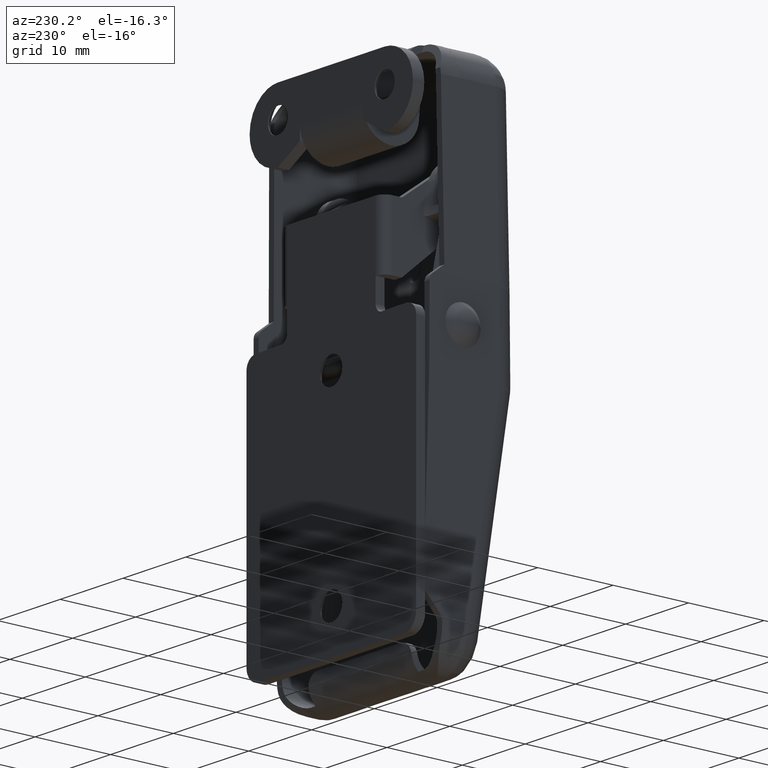
[diagram: clean part render]
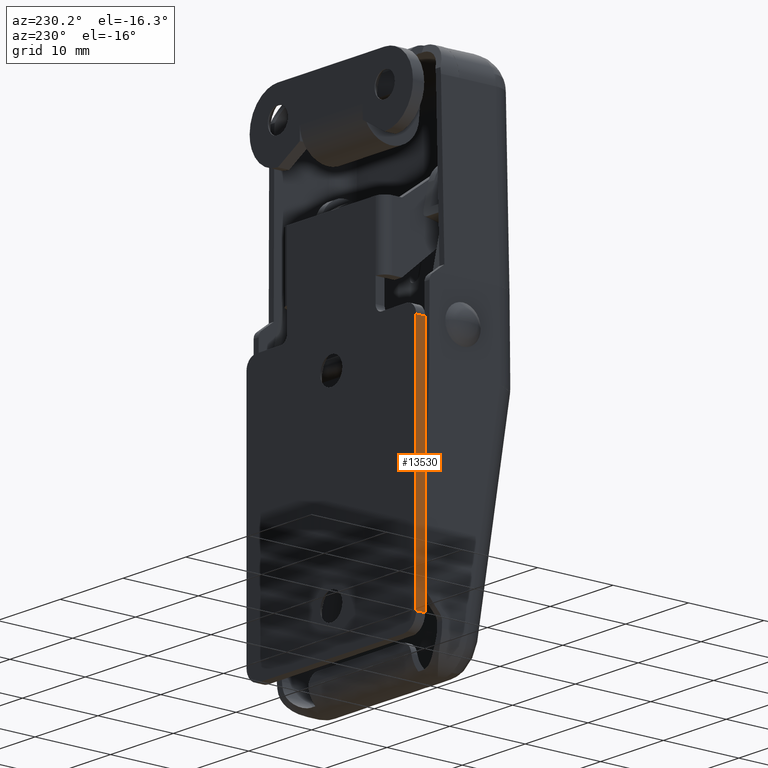
[diagram: same view with one face highlighted and labeled with its STEP entity id]
A machine part, auxiliary view. The second image highlights one B-rep face of the part: STEP entity #13530.
In plain terms, the highlighted face is a freeform B-spline surface patch.
Its self-contained STEP definition (entity closure, byte-faithful):
#13100=CARTESIAN_POINT('',(-13.499999999934261,5.714366013954140,-26.321209131115150));
#13101=VERTEX_POINT('',#13100);
#13115=CARTESIAN_POINT('',(-13.500000000010820,5.714366013954140,5.178790868792590));
#13116=VERTEX_POINT('',#13115);
#13117=CARTESIAN_POINT('',(-13.499999999934261,5.714366013954140,-26.321209131115150));
#13118=CARTESIAN_POINT('',(-13.500000000010820,5.714366013954140,5.178790868792590));
#13119=QUASI_UNIFORM_CURVE('',1,(#13117,#13118),.UNSPECIFIED.,.F.,.U.);
#13120=EDGE_CURVE('',#13101,#13116,#13119,.T.);
#13213=CARTESIAN_POINT('',(-13.500000000010820,4.514366013954160,5.178790868792590));
#13214=VERTEX_POINT('',#13213);
#13227=CARTESIAN_POINT('',(-13.499999999934261,4.514366013954160,-26.321209131115150));
#13228=VERTEX_POINT('',#13227);
#13229=CARTESIAN_POINT('',(-13.499999999934261,4.514366013954160,-26.321209131115150));
#13230=CARTESIAN_POINT('',(-13.500000000010820,4.514366013954160,5.178790868792590));
#13231=QUASI_UNIFORM_CURVE('',1,(#13229,#13230),.UNSPECIFIED.,.F.,.U.);
#13232=EDGE_CURVE('',#13228,#13214,#13231,.T.);
#13505=CARTESIAN_POINT('',(-13.500000000010820,4.514366013954160,5.178790868792590));
#13506=CARTESIAN_POINT('',(-13.500000000010820,5.714366013954140,5.178790868792590));
#13507=QUASI_UNIFORM_CURVE('',1,(#13505,#13506),.UNSPECIFIED.,.F.,.U.);
#13508=EDGE_CURVE('',#13214,#13116,#13507,.T.);
#13515=CARTESIAN_POINT('',(-13.499999999930440,4.454426016279993,-27.894634070057428));
#13516=CARTESIAN_POINT('',(-13.500000000014650,4.454426016279993,6.752216652630709));
#13517=CARTESIAN_POINT('',(-13.499999999930440,5.774306043814815,-27.894634070057428));
#13518=CARTESIAN_POINT('',(-13.500000000014650,5.774306043814815,6.752216652630709));
#13519=B_SPLINE_SURFACE_WITH_KNOTS('',1,1,((#13515,#13517),(#13516,#13518)),.UNSPECIFIED.,.F.,.F.,.U.,(2,2),(2,2),(0.0,34.646850722688143),(0.041708334948495,0.958291687403247),.UNSPECIFIED.);
#13520=ORIENTED_EDGE('',*,*,#13120,.F.);
#13521=CARTESIAN_POINT('',(-13.499999999934261,4.514366013954160,-26.321209131115150));
#13522=CARTESIAN_POINT('',(-13.499999999934261,5.714366013954140,-26.321209131115150));
#13523=QUASI_UNIFORM_CURVE('',1,(#13521,#13522),.UNSPECIFIED.,.F.,.U.);
#13524=EDGE_CURVE('',#13228,#13101,#13523,.T.);
#13525=ORIENTED_EDGE('',*,*,#13524,.F.);
#13526=ORIENTED_EDGE('',*,*,#13232,.T.);
#13527=ORIENTED_EDGE('',*,*,#13508,.T.);
#13528=EDGE_LOOP('',(#13520,#13525,#13526,#13527));
#13529=FACE_OUTER_BOUND('',#13528,.T.);
#13530=ADVANCED_FACE('',(#13529),#13519,.T.);